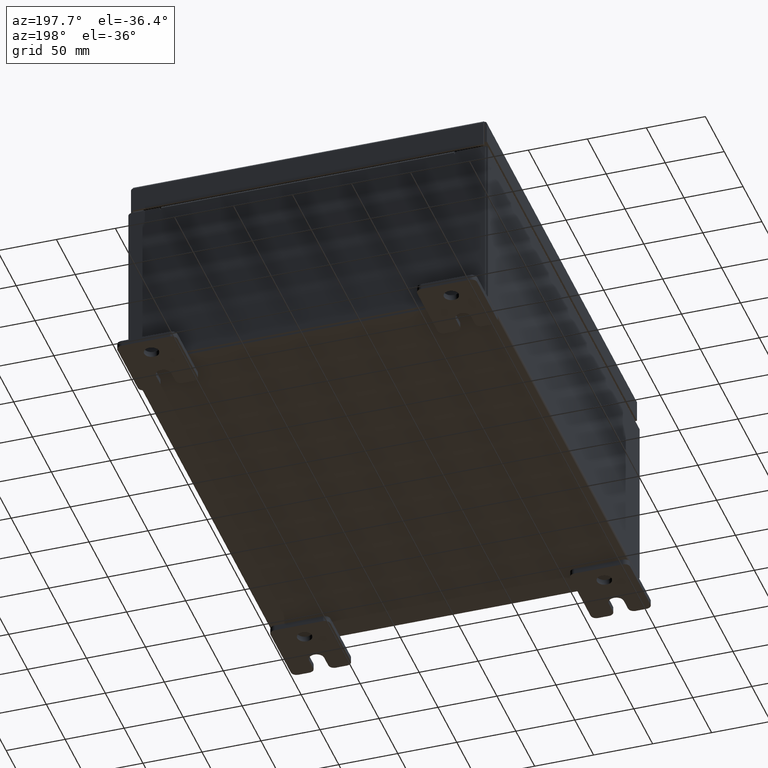
[diagram: clean part render]
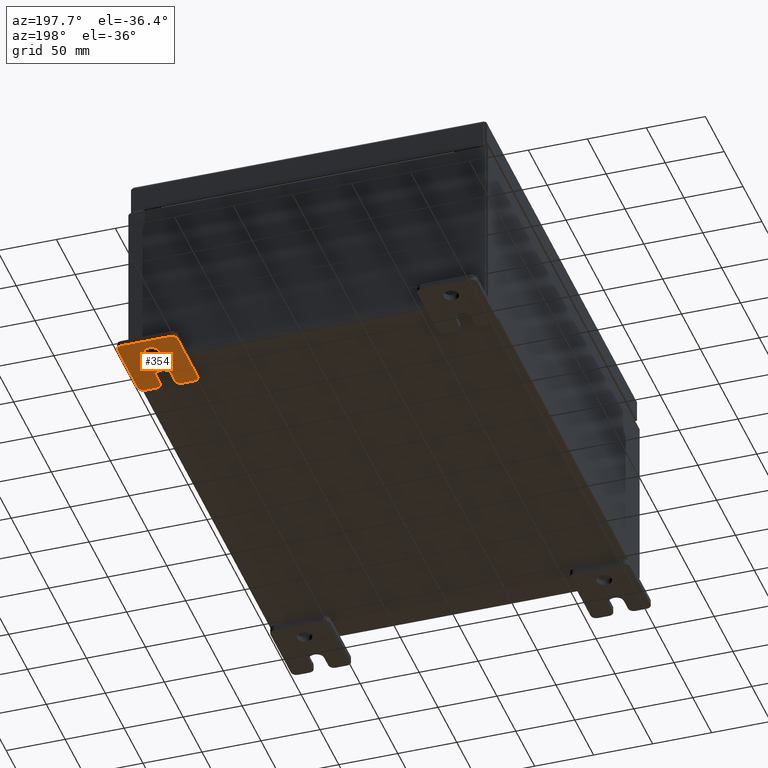
[diagram: same view with one face highlighted and labeled with its STEP entity id]
A machine part, auxiliary view. The second image highlights one B-rep face of the part: STEP entity #354.
In plain terms, the highlighted planar face has unit normal (0, 0, 1).
Its self-contained STEP definition (entity closure, byte-faithful):
#226 = LINE ( 'NONE', #4002, #47158 ) ;
#354 = ADVANCED_FACE ( 'NONE', ( #2881, #51322 ), #30503, .F. ) ;
#692 = DIRECTION ( 'NONE',  ( 1.000000000000000000, 0.0000000000000000000, -0.0000000000000000000 ) ) ;
#1239 = DIRECTION ( 'NONE',  ( -6.829619984160660000E-016, -1.000000000000000000, 0.0000000000000000000 ) ) ;
#1439 = CARTESIAN_POINT ( 'NONE',  ( -0.1879999999999997800, 1.059999999999993400, -1.000000000000010000 ) ) ;
#1889 = AXIS2_PLACEMENT_3D ( 'NONE', #44020, #43856, #43808 ) ;
#2728 = ORIENTED_EDGE ( 'NONE', *, *, #3908, .T. ) ;
#2793 = VECTOR ( 'NONE', #4687, 39.37007874015748100 ) ;
#2881 = FACE_BOUND ( 'NONE', #56726, .T. ) ;
#3453 = AXIS2_PLACEMENT_3D ( 'NONE', #29598, #29534, #29473 ) ;
#3908 = EDGE_CURVE ( 'NONE', #52442, #20004, #56207, .T. ) ;
#4002 = CARTESIAN_POINT ( 'NONE',  ( -0.1879999999999997800, 1.249999999999994200, -1.000000000000010400 ) ) ;
#4241 = LINE ( 'NONE', #4945, #2793 ) ;
#4687 = DIRECTION ( 'NONE',  ( -6.556435184794182400E-016, -1.000000000000000000, -1.639108796198545600E-016 ) ) ;
#4945 = CARTESIAN_POINT ( 'NONE',  ( -0.1880000000000001900, -0.6249999999999992200, -0.2499999999999993900 ) ) ;
#6561 = EDGE_CURVE ( 'NONE', #48049, #45681, #10248, .T. ) ;
#7523 = CIRCLE ( 'NONE', #55316, 0.2499999999999999200 ) ;
#7546 = CIRCLE ( 'NONE', #57213, 0.1900000000000011100 ) ;
#7556 = CARTESIAN_POINT ( 'NONE',  ( -0.1879999999999997800, -1.250000000000004700, -0.4400000000000002200 ) ) ;
#8576 = ORIENTED_EDGE ( 'NONE', *, *, #43067, .F. ) ;
#8615 = CARTESIAN_POINT ( 'NONE',  ( -0.1880000000000010000, 0.6249999999999992200, 0.2499999999999999200 ) ) ;
#9581 = CARTESIAN_POINT ( 'NONE',  ( -0.1879999999999997800, -1.250000000000002400, 0.8099999999999980500 ) ) ;
#9969 = EDGE_CURVE ( 'NONE', #58852, #32559, #7523, .T. ) ;
#10248 = LINE ( 'NONE', #46765, #49096 ) ;
#10632 = AXIS2_PLACEMENT_3D ( 'NONE', #27839, #692, #34334 ) ;
#10741 = DIRECTION ( 'NONE',  ( -1.000000000000000000, -0.0000000000000000000, 0.0000000000000000000 ) ) ;
#11263 = ORIENTED_EDGE ( 'NONE', *, *, #6561, .F. ) ;
#11448 = ORIENTED_EDGE ( 'NONE', *, *, #22597, .T. ) ;
#12520 = CARTESIAN_POINT ( 'NONE',  ( -0.1879999999999997800, -1.060000000000004100, -0.8100000000000050500 ) ) ;
#12966 = VERTEX_POINT ( 'NONE', #54097 ) ;
#13121 = CARTESIAN_POINT ( 'NONE',  ( -0.1879999999999997800, -1.060000000000001600, 0.8099999999999978300 ) ) ;
#13435 = ORIENTED_EDGE ( 'NONE', *, *, #19674, .T. ) ;
#13666 = VERTEX_POINT ( 'NONE', #50901 ) ;
#15274 = VERTEX_POINT ( 'NONE', #8615 ) ;
#15366 = CARTESIAN_POINT ( 'NONE',  ( -0.1879999999999997800, -1.250000000000005300, -0.8100000000000047200 ) ) ;
#15498 = LINE ( 'NONE', #58880, #51356 ) ;
#17272 = DIRECTION ( 'NONE',  ( 0.0000000000000000000, 0.0000000000000000000, -1.000000000000000000 ) ) ;
#17647 = CARTESIAN_POINT ( 'NONE',  ( -0.1880000000000001900, -0.6249999999999992200, -0.2499999999999998600 ) ) ;
#17820 = DIRECTION ( 'NONE',  ( 0.0000000000000000000, 7.189073667537492800E-016, -1.000000000000000000 ) ) ;
#19387 = EDGE_CURVE ( 'NONE', #41501, #45681, #48859, .T. ) ;
#19674 = EDGE_CURVE ( 'NONE', #45363, #13666, #37084, .T. ) ;
#19696 = DIRECTION ( 'NONE',  ( 0.0000000000000000000, -1.639108796198553600E-015, -1.000000000000000000 ) ) ;
#19957 = AXIS2_PLACEMENT_3D ( 'NONE', #34020, #33880, #33676 ) ;
#20004 = VERTEX_POINT ( 'NONE', #22902 ) ;
#20947 = ORIENTED_EDGE ( 'NONE', *, *, #34322, .T. ) ;
#21599 = DIRECTION ( 'NONE',  ( 0.0000000000000000000, -1.000000000000000000, 1.639108796198558100E-015 ) ) ;
#21830 = EDGE_CURVE ( 'NONE', #52442, #49122, #42513, .T. ) ;
#22010 = ORIENTED_EDGE ( 'NONE', *, *, #52547, .T. ) ;
#22102 = VECTOR ( 'NONE', #32101, 39.37007874015748100 ) ;
#22597 = EDGE_CURVE ( 'NONE', #15274, #51882, #60024, .T. ) ;
#22717 = LINE ( 'NONE', #32225, #22102 ) ;
#22902 = CARTESIAN_POINT ( 'NONE',  ( -0.1880000000000004700, -1.060000000000003400, -0.2499999999999994400 ) ) ;
#22955 = ORIENTED_EDGE ( 'NONE', *, *, #19387, .T. ) ;
#23528 = CARTESIAN_POINT ( 'NONE',  ( -0.1879999999999997800, -1.060000000000001200, 0.9999999999999988900 ) ) ;
#23970 = CIRCLE ( 'NONE', #3453, 0.2499999999999999200 ) ;
#24129 = CARTESIAN_POINT ( 'NONE',  ( -0.1880000000000005800, -1.250000000000003800, 0.2500000000000005000 ) ) ;
#24672 = VERTEX_POINT ( 'NONE', #1439 ) ;
#24957 = DIRECTION ( 'NONE',  ( -1.000000000000000000, 6.523827964459549700E-016, 5.163192708025532000E-017 ) ) ;
#25598 = CARTESIAN_POINT ( 'NONE',  ( -0.1879999999999997800, -1.250000000000002200, 0.9999999999999992200 ) ) ;
#26288 = DIRECTION ( 'NONE',  ( 0.0000000000000000000, -1.639108796198553600E-015, -1.000000000000000000 ) ) ;
#27632 = ORIENTED_EDGE ( 'NONE', *, *, #44001, .F. ) ;
#27839 = CARTESIAN_POINT ( 'NONE',  ( -0.1879999999999997800, 0.0000000000000000000, 0.0000000000000000000 ) ) ;
#27925 = AXIS2_PLACEMENT_3D ( 'NONE', #34232, #43037, #52982 ) ;
#28754 = ORIENTED_EDGE ( 'NONE', *, *, #9969, .F. ) ;
#29473 = DIRECTION ( 'NONE',  ( 0.0000000000000000000, 0.0000000000000000000, -1.000000000000000000 ) ) ;
#29534 = DIRECTION ( 'NONE',  ( 1.000000000000000000, -0.0000000000000000000, -5.163192708025532000E-017 ) ) ;
#29598 = CARTESIAN_POINT ( 'NONE',  ( -0.1880000000000010000, 0.6249999999999992200, -7.703811342100550500E-020 ) ) ;
#29685 = AXIS2_PLACEMENT_3D ( 'NONE', #43796, #43720, #43672 ) ;
#29827 = EDGE_CURVE ( 'NONE', #41251, #24672, #22717, .T. ) ;
#30503 = PLANE ( 'NONE',  #10632 ) ;
#30905 = CARTESIAN_POINT ( 'NONE',  ( -0.1879999999999997800, -1.060000000000004500, -1.000000000000006400 ) ) ;
#32101 = DIRECTION ( 'NONE',  ( 0.0000000000000000000, 1.000000000000000000, -1.639108796198558100E-015 ) ) ;
#32225 = CARTESIAN_POINT ( 'NONE',  ( -0.1879999999999997800, -1.250000000000005600, -1.000000000000006200 ) ) ;
#32559 = VERTEX_POINT ( 'NONE', #17647 ) ;
#33676 = DIRECTION ( 'NONE',  ( 0.0000000000000000000, 0.0000000000000000000, -1.000000000000000000 ) ) ;
#33880 = DIRECTION ( 'NONE',  ( -1.000000000000000000, -0.0000000000000000000, 0.0000000000000000000 ) ) ;
#33941 = ORIENTED_EDGE ( 'NONE', *, *, #36434, .F. ) ;
#34020 = CARTESIAN_POINT ( 'NONE',  ( -0.1879999999999997800, 1.059999999999996300, 0.8099999999999938400 ) ) ;
#34232 = CARTESIAN_POINT ( 'NONE',  ( -0.1879999999999997800, -1.060000000000003400, -0.4400000000000005000 ) ) ;
#34322 = EDGE_CURVE ( 'NONE', #51882, #15274, #23970, .T. ) ;
#34334 = DIRECTION ( 'NONE',  ( -0.0000000000000000000, 0.0000000000000000000, -1.000000000000000000 ) ) ;
#34533 = LINE ( 'NONE', #24129, #58064 ) ;
#36434 = EDGE_CURVE ( 'NONE', #32559, #20004, #4241, .T. ) ;
#36692 = ORIENTED_EDGE ( 'NONE', *, *, #21830, .F. ) ;
#37084 = CIRCLE ( 'NONE', #19957, 0.1900000000000011100 ) ;
#38386 = VERTEX_POINT ( 'NONE', #23528 ) ;
#38772 = CARTESIAN_POINT ( 'NONE',  ( -0.1879999999999997800, 1.059999999999993600, -0.8100000000000089400 ) ) ;
#39966 = CARTESIAN_POINT ( 'NONE',  ( -0.1880000000000010000, 0.6249999999999992200, -0.2499999999999999200 ) ) ;
#40934 = ORIENTED_EDGE ( 'NONE', *, *, #47490, .T. ) ;
#41251 = VERTEX_POINT ( 'NONE', #30905 ) ;
#41501 = VERTEX_POINT ( 'NONE', #42000 ) ;
#42000 = CARTESIAN_POINT ( 'NONE',  ( -0.1880000000000004700, -1.060000000000002100, 0.2500000000000005000 ) ) ;
#42513 = LINE ( 'NONE', #25598, #49914 ) ;
#43026 = CARTESIAN_POINT ( 'NONE',  ( -0.1879999999999997800, -1.250000000000003100, 0.4400000000000020000 ) ) ;
#43037 = DIRECTION ( 'NONE',  ( -1.000000000000000000, -0.0000000000000000000, 0.0000000000000000000 ) ) ;
#43039 = DIRECTION ( 'NONE',  ( 6.556435184794182400E-016, 1.000000000000000000, 0.0000000000000000000 ) ) ;
#43067 = EDGE_CURVE ( 'NONE', #12966, #13666, #226, .T. ) ;
#43543 = DIRECTION ( 'NONE',  ( 0.0000000000000000000, 0.0000000000000000000, -1.000000000000000000 ) ) ;
#43672 = DIRECTION ( 'NONE',  ( 0.0000000000000000000, 0.0000000000000000000, -1.000000000000000000 ) ) ;
#43720 = DIRECTION ( 'NONE',  ( 1.000000000000000000, -0.0000000000000000000, -5.163192708025532000E-017 ) ) ;
#43796 = CARTESIAN_POINT ( 'NONE',  ( -0.1880000000000010000, 0.6249999999999992200, -7.703811342100550500E-020 ) ) ;
#43808 = DIRECTION ( 'NONE',  ( 0.0000000000000000000, 0.0000000000000000000, -1.000000000000000000 ) ) ;
#43856 = DIRECTION ( 'NONE',  ( -1.000000000000000000, -0.0000000000000000000, 0.0000000000000000000 ) ) ;
#44001 = EDGE_CURVE ( 'NONE', #41501, #58852, #34533, .T. ) ;
#44020 = CARTESIAN_POINT ( 'NONE',  ( -0.1879999999999997800, -1.060000000000002100, 0.4400000000000016700 ) ) ;
#44195 = EDGE_LOOP ( 'NONE', ( #11263, #22010, #53650, #13435, #8576, #40934, #45383, #57740, #36692, #2728, #33941, #28754, #27632, #22955 ) ) ;
#45081 = CARTESIAN_POINT ( 'NONE',  ( -0.1880000000000001900, -0.6249999999999992200, 0.2500000000000005000 ) ) ;
#45336 = DIRECTION ( 'NONE',  ( -1.000000000000000000, -0.0000000000000000000, 0.0000000000000000000 ) ) ;
#45363 = VERTEX_POINT ( 'NONE', #55351 ) ;
#45383 = ORIENTED_EDGE ( 'NONE', *, *, #29827, .F. ) ;
#45681 = VERTEX_POINT ( 'NONE', #43026 ) ;
#45744 = AXIS2_PLACEMENT_3D ( 'NONE', #38772, #10741, #43543 ) ;
#45904 = DIRECTION ( 'NONE',  ( -1.000000000000000000, -0.0000000000000000000, 0.0000000000000000000 ) ) ;
#46765 = CARTESIAN_POINT ( 'NONE',  ( -0.1879999999999997800, -1.250000000000002200, 0.9999999999999992200 ) ) ;
#47093 = EDGE_CURVE ( 'NONE', #41251, #49122, #49209, .T. ) ;
#47158 = VECTOR ( 'NONE', #60178, 39.37007874015748100 ) ;
#47490 = EDGE_CURVE ( 'NONE', #12966, #24672, #54284, .T. ) ;
#48049 = VERTEX_POINT ( 'NONE', #9581 ) ;
#48859 = CIRCLE ( 'NONE', #1889, 0.1900000000000011400 ) ;
#49096 = VECTOR ( 'NONE', #19696, 39.37007874015748100 ) ;
#49122 = VERTEX_POINT ( 'NONE', #15366 ) ;
#49209 = CIRCLE ( 'NONE', #60629, 0.1900000000000011100 ) ;
#49914 = VECTOR ( 'NONE', #26288, 39.37007874015748100 ) ;
#50901 = CARTESIAN_POINT ( 'NONE',  ( -0.1879999999999997800, 1.249999999999997300, 0.8099999999999935000 ) ) ;
#51322 = FACE_OUTER_BOUND ( 'NONE', #44195, .T. ) ;
#51356 = VECTOR ( 'NONE', #21599, 39.37007874015748100 ) ;
#51608 = CARTESIAN_POINT ( 'NONE',  ( -0.1880000000000001900, -0.6249999999999992200, 6.829619984160658000E-017 ) ) ;
#51882 = VERTEX_POINT ( 'NONE', #39966 ) ;
#52442 = VERTEX_POINT ( 'NONE', #7556 ) ;
#52547 = EDGE_CURVE ( 'NONE', #48049, #38386, #7546, .T. ) ;
#52982 = DIRECTION ( 'NONE',  ( 0.0000000000000000000, 0.0000000000000000000, -1.000000000000000000 ) ) ;
#53650 = ORIENTED_EDGE ( 'NONE', *, *, #57209, .F. ) ;
#54097 = CARTESIAN_POINT ( 'NONE',  ( -0.1879999999999997800, 1.249999999999994700, -0.8100000000000092700 ) ) ;
#54284 = CIRCLE ( 'NONE', #45744, 0.1900000000000011100 ) ;
#55316 = AXIS2_PLACEMENT_3D ( 'NONE', #51608, #24957, #1239 ) ;
#55351 = CARTESIAN_POINT ( 'NONE',  ( -0.1879999999999997800, 1.059999999999996500, 0.9999999999999953400 ) ) ;
#56207 = CIRCLE ( 'NONE', #27925, 0.1900000000000011100 ) ;
#56726 = EDGE_LOOP ( 'NONE', ( #20947, #11448 ) ) ;
#57209 = EDGE_CURVE ( 'NONE', #45363, #38386, #15498, .T. ) ;
#57213 = AXIS2_PLACEMENT_3D ( 'NONE', #13121, #45904, #17820 ) ;
#57740 = ORIENTED_EDGE ( 'NONE', *, *, #47093, .T. ) ;
#58064 = VECTOR ( 'NONE', #43039, 39.37007874015748100 ) ;
#58852 = VERTEX_POINT ( 'NONE', #45081 ) ;
#58880 = CARTESIAN_POINT ( 'NONE',  ( -0.1879999999999997800, 1.249999999999997600, 0.9999999999999951200 ) ) ;
#60024 = CIRCLE ( 'NONE', #29685, 0.2499999999999999200 ) ;
#60178 = DIRECTION ( 'NONE',  ( 0.0000000000000000000, 1.639108796198553600E-015, 1.000000000000000000 ) ) ;
#60629 = AXIS2_PLACEMENT_3D ( 'NONE', #12520, #45336, #17272 ) ;